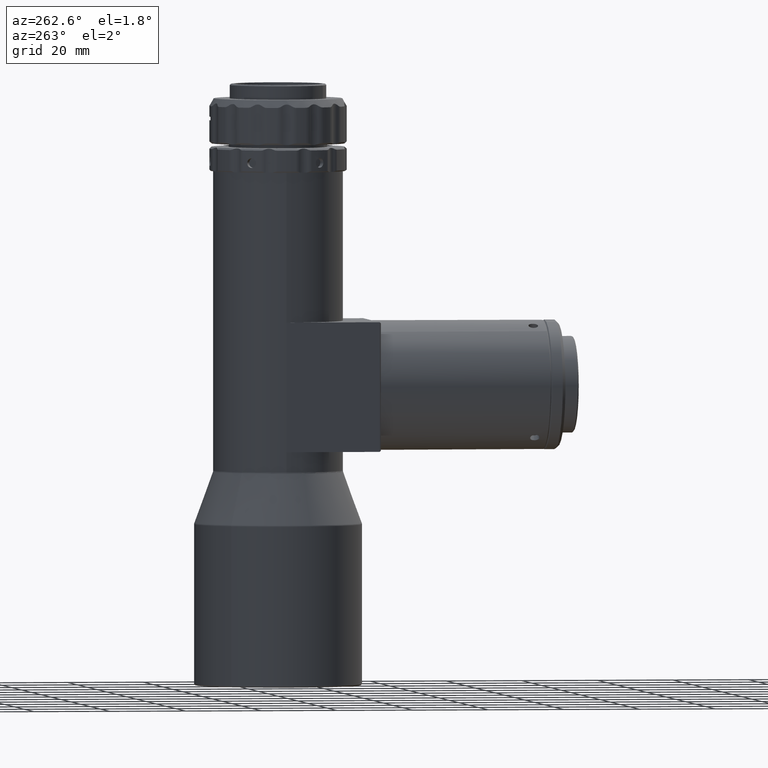
[diagram: clean part render]
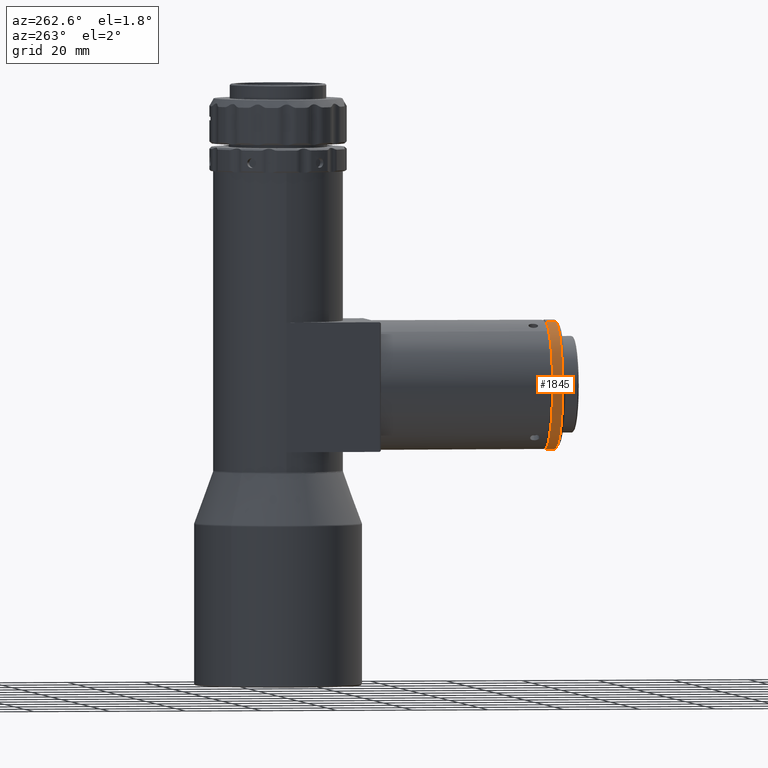
[diagram: same view with one face highlighted and labeled with its STEP entity id]
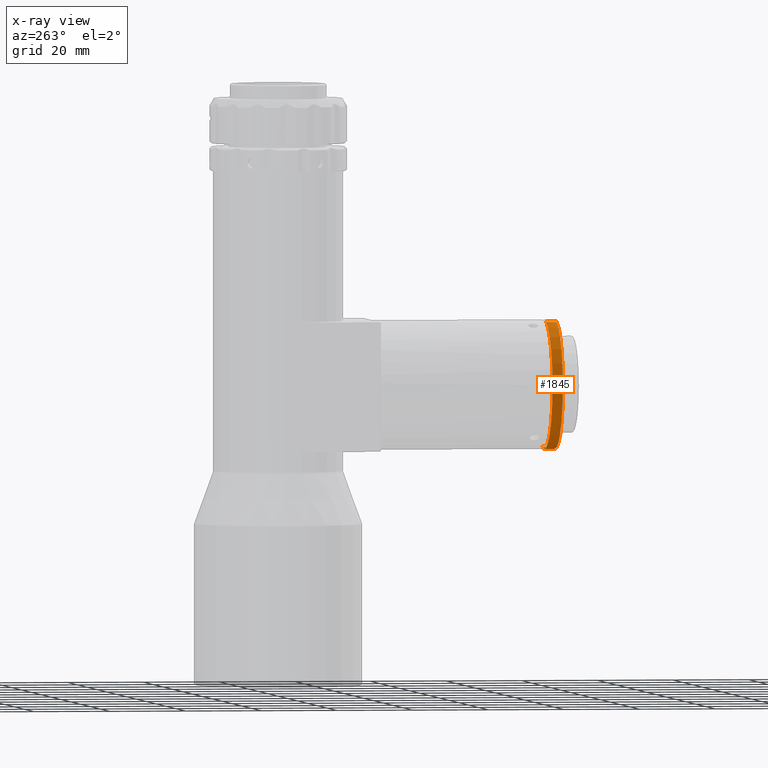
[diagram: x-ray of the same camera — body ghosted, the highlighted face saturated]
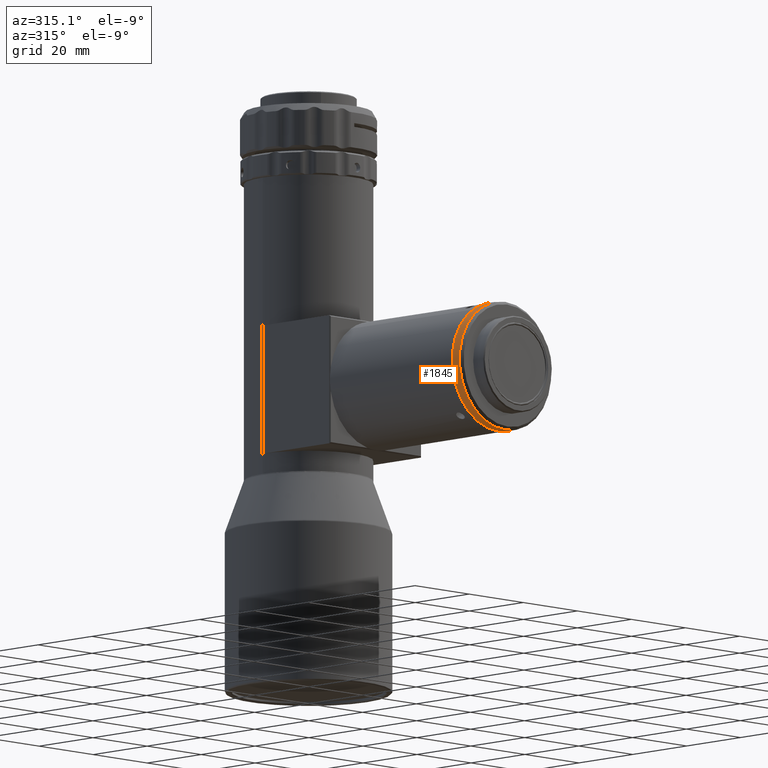
[diagram: same view with one face highlighted and labeled with its STEP entity id]
A machine part, auxiliary view. The second image highlights one B-rep face of the part: STEP entity #1845.
The next image is the same camera in x-ray: the body ghosted, the highlighted face saturated — about 0% of this face is hidden behind the body in this view.
A second angle (auxiliary view) of the same face is appended — the face is thin or edge-on in the first view.
In plain terms, the highlighted cylindrical surface (partial cylindrical patch) has radius 17 mm, axis along (0, 1, 0).
Its self-contained STEP definition (entity closure, byte-faithful):
#485 = DIRECTION ( 'NONE',  ( 5.551115123125802400E-017, 1.000000000000000000, 2.161748815651545200E-017 ) ) ;
#524 = DIRECTION ( 'NONE',  ( -0.2435221685198373500, 0.0000000000000000000, 0.9698953311772335900 ) ) ;
#1101 = LINE ( 'NONE', #9236, #3401 ) ;
#1279 = EDGE_CURVE ( 'NONE', #4744, #2508, #1536, .T. ) ;
#1411 = CYLINDRICAL_SURFACE ( 'NONE', #6448, 17.00000000000000700 ) ;
#1457 = ORIENTED_EDGE ( 'NONE', *, *, #5021, .T. ) ;
#1536 = CIRCLE ( 'NONE', #1936, 17.00000000000000700 ) ;
#1845 = ADVANCED_FACE ( 'NONE', ( #4602 ), #1411, .T. ) ;
#1849 = ORIENTED_EDGE ( 'NONE', *, *, #1279, .T. ) ;
#1936 = AXIS2_PLACEMENT_3D ( 'NONE', #3331, #6577, #5761 ) ;
#2508 = VERTEX_POINT ( 'NONE', #3172 ) ;
#2572 = EDGE_LOOP ( 'NONE', ( #9030, #1849, #1457, #8817 ) ) ;
#2695 = DIRECTION ( 'NONE',  ( 5.551115123125802400E-017, 1.000000000000000000, 2.161748815651545200E-017 ) ) ;
#2717 = LINE ( 'NONE', #7485, #4644 ) ;
#2805 = CARTESIAN_POINT ( 'NONE',  ( 1.628204941498568500E-015, -70.06000000000005900, 22.83130850271084700 ) ) ;
#3172 = CARTESIAN_POINT ( 'NONE',  ( -4.139876864837234800, -73.06000000000005900, 39.31952913272382200 ) ) ;
#3287 = VERTEX_POINT ( 'NONE', #10610 ) ;
#3331 = CARTESIAN_POINT ( 'NONE',  ( 1.461671487804795600E-015, -73.06000000000005900, 22.83130850271084700 ) ) ;
#3336 = CARTESIAN_POINT ( 'NONE',  ( 4.139876864837240200, -70.36000000000005600, 6.343087872697872800 ) ) ;
#3401 = VECTOR ( 'NONE', #2695, 1000.000000000000000 ) ;
#3875 = AXIS2_PLACEMENT_3D ( 'NONE', #5764, #7356, #8121 ) ;
#4602 = FACE_OUTER_BOUND ( 'NONE', #2572, .T. ) ;
#4644 = VECTOR ( 'NONE', #8290, 1000.000000000000000 ) ;
#4744 = VERTEX_POINT ( 'NONE', #10606 ) ;
#5021 = EDGE_CURVE ( 'NONE', #2508, #3287, #1101, .T. ) ;
#5239 = EDGE_CURVE ( 'NONE', #3287, #9739, #9655, .T. ) ;
#5761 = DIRECTION ( 'NONE',  ( -0.2435221685198373500, 0.0000000000000000000, 0.9698953311772335900 ) ) ;
#5764 = CARTESIAN_POINT ( 'NONE',  ( 1.611551596129196600E-015, -70.36000000000005600, 22.83130850271084700 ) ) ;
#6448 = AXIS2_PLACEMENT_3D ( 'NONE', #2805, #485, #524 ) ;
#6577 = DIRECTION ( 'NONE',  ( 5.551115123125802400E-017, 1.000000000000000000, 2.161748815651545200E-017 ) ) ;
#7019 = EDGE_CURVE ( 'NONE', #4744, #9739, #2717, .T. ) ;
#7356 = DIRECTION ( 'NONE',  ( -5.551115123125802400E-017, -1.000000000000000000, -2.161748815651545200E-017 ) ) ;
#7485 = CARTESIAN_POINT ( 'NONE',  ( 4.139876864837240200, -70.06000000000005900, 6.343087872697872800 ) ) ;
#8121 = DIRECTION ( 'NONE',  ( 0.2435221685198374300, 0.0000000000000000000, -0.9698953311772338100 ) ) ;
#8290 = DIRECTION ( 'NONE',  ( 5.551115123125802400E-017, 1.000000000000000000, 2.161748815651545200E-017 ) ) ;
#8817 = ORIENTED_EDGE ( 'NONE', *, *, #5239, .T. ) ;
#9030 = ORIENTED_EDGE ( 'NONE', *, *, #7019, .F. ) ;
#9236 = CARTESIAN_POINT ( 'NONE',  ( -4.139876864837234800, -70.06000000000005900, 39.31952913272382200 ) ) ;
#9655 = CIRCLE ( 'NONE', #3875, 17.00000000000000000 ) ;
#9739 = VERTEX_POINT ( 'NONE', #3336 ) ;
#10606 = CARTESIAN_POINT ( 'NONE',  ( 4.139876864837240200, -73.06000000000005900, 6.343087872697872800 ) ) ;
#10610 = CARTESIAN_POINT ( 'NONE',  ( -4.139876864837234800, -70.36000000000005600, 39.31952913272382200 ) ) ;